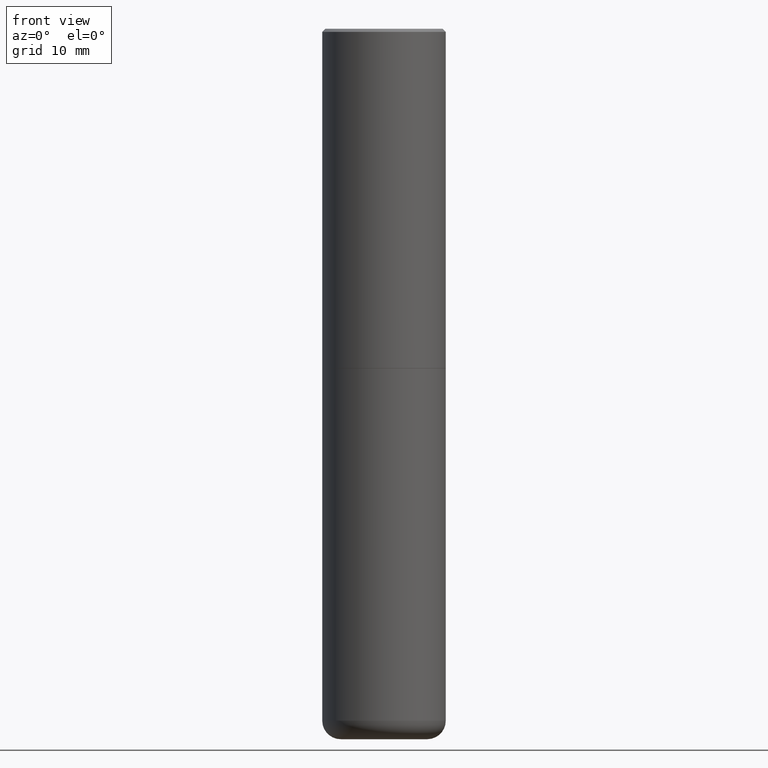
[diagram: clean part render]
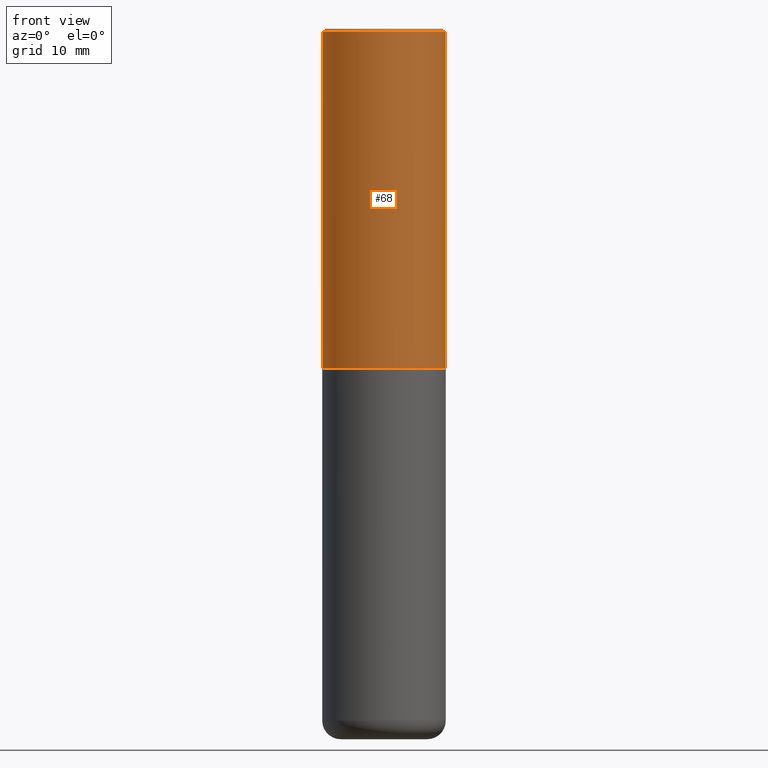
[diagram: same view with one face highlighted and labeled with its STEP entity id]
A machine part, front view. The second image highlights one B-rep face of the part: STEP entity #68.
In plain terms, the highlighted cylindrical surface (partial cylindrical patch) has radius 10 mm, axis along (-0, 0, 1).
Its self-contained STEP definition (entity closure, byte-faithful):
#33 = VERTEX_POINT ( 'NONE', #214 ) ;
#34 = CARTESIAN_POINT ( 'NONE',  ( 0.3937000000000001609, -2.749192406205084400E-15, 1.919750796630860732E-29 ) ) ;
#48 = DIRECTION ( 'NONE',  ( -2.445468806185136877E-29, 3.491481338843145188E-15, 1.000000000000000000 ) ) ;
#52 = FACE_OUTER_BOUND ( 'NONE', #336, .T. ) ;
#53 = ORIENTED_EDGE ( 'NONE', *, *, #170, .T. ) ;
#55 = VECTOR ( 'NONE', #48, 39.37007874015748143 ) ;
#62 = CIRCLE ( 'NONE', #149, 0.3937000000000002720 ) ;
#68 = ADVANCED_FACE ( 'NONE', ( #52 ), #378, .T. ) ;
#95 = VERTEX_POINT ( 'NONE', #103 ) ;
#97 = DIRECTION ( 'NONE',  ( -2.445468806185136597E-29, 3.491481338843145583E-15, 1.000000000000000000 ) ) ;
#99 = ORIENTED_EDGE ( 'NONE', *, *, #110, .F. ) ;
#103 = CARTESIAN_POINT ( 'NONE',  ( -0.3937000000000000499, 2.679362779428219918E-15, -0.02000000000000008715 ) ) ;
#110 = EDGE_CURVE ( 'NONE', #95, #33, #117, .T. ) ;
#116 = CARTESIAN_POINT ( 'NONE',  ( 5.292972684107107621E-29, -7.556962209792102838E-15, -2.164399999999999658 ) ) ;
#117 = CIRCLE ( 'NONE', #181, 0.3937000000000000499 ) ;
#139 = DIRECTION ( 'NONE',  ( 1.000000000000000000, -6.982962677686265922E-15, 0.000000000000000000 ) ) ;
#141 = CARTESIAN_POINT ( 'NONE',  ( -0.3937000000000003830, -1.015989167596963746E-15, -2.164399999999999658 ) ) ;
#149 = AXIS2_PLACEMENT_3D ( 'NONE', #116, #350, #317 ) ;
#170 = EDGE_CURVE ( 'NONE', #293, #33, #204, .T. ) ;
#181 = AXIS2_PLACEMENT_3D ( 'NONE', #212, #97, #139 ) ;
#185 = LINE ( 'NONE', #309, #55 ) ;
#204 = LINE ( 'NONE', #34, #363 ) ;
#206 = ORIENTED_EDGE ( 'NONE', *, *, #353, .T. ) ;
#212 = CARTESIAN_POINT ( 'NONE',  ( 4.890937612370294178E-31, -6.982962677686321191E-17, -0.02000000000000008715 ) ) ;
#214 = CARTESIAN_POINT ( 'NONE',  ( 0.3937000000000000499, -2.770807688499515734E-15, -0.02000000000000008715 ) ) ;
#221 = CARTESIAN_POINT ( 'NONE',  ( 0.3937000000000002720, -1.030615461599718763E-14, -2.164399999999999658 ) ) ;
#228 = DIRECTION ( 'NONE',  ( -2.445468806185136597E-29, 3.491481338843145583E-15, 1.000000000000000000 ) ) ;
#235 = ORIENTED_EDGE ( 'NONE', *, *, #410, .F. ) ;
#293 = VERTEX_POINT ( 'NONE', #221 ) ;
#309 = CARTESIAN_POINT ( 'NONE',  ( -0.3937000000000001609, 2.797406750687515575E-15, -1.936584745033357296E-29 ) ) ;
#317 = DIRECTION ( 'NONE',  ( 1.000000000000000000, -6.982962677686269077E-15, 0.000000000000000000 ) ) ;
#326 = DIRECTION ( 'NONE',  ( -2.445468806185136877E-29, 3.491481338843145188E-15, 1.000000000000000000 ) ) ;
#333 = VERTEX_POINT ( 'NONE', #141 ) ;
#336 = EDGE_LOOP ( 'NONE', ( #235, #206, #53, #99 ) ) ;
#350 = DIRECTION ( 'NONE',  ( -2.445468806185136597E-29, 3.491481338843145583E-15, 1.000000000000000000 ) ) ;
#351 = DIRECTION ( 'NONE',  ( 1.000000000000000000, -6.982962677686266711E-15, 4.876176775795935793E-29 ) ) ;
#353 = EDGE_CURVE ( 'NONE', #333, #293, #62, .T. ) ;
#363 = VECTOR ( 'NONE', #326, 39.37007874015748143 ) ;
#364 = AXIS2_PLACEMENT_3D ( 'NONE', #408, #228, #351 ) ;
#378 = CYLINDRICAL_SURFACE ( 'NONE', #364, 0.3937000000000001609 ) ;
#408 = CARTESIAN_POINT ( 'NONE',  ( 0.000000000000000000, 0.000000000000000000, 0.000000000000000000 ) ) ;
#410 = EDGE_CURVE ( 'NONE', #333, #95, #185, .T. ) ;